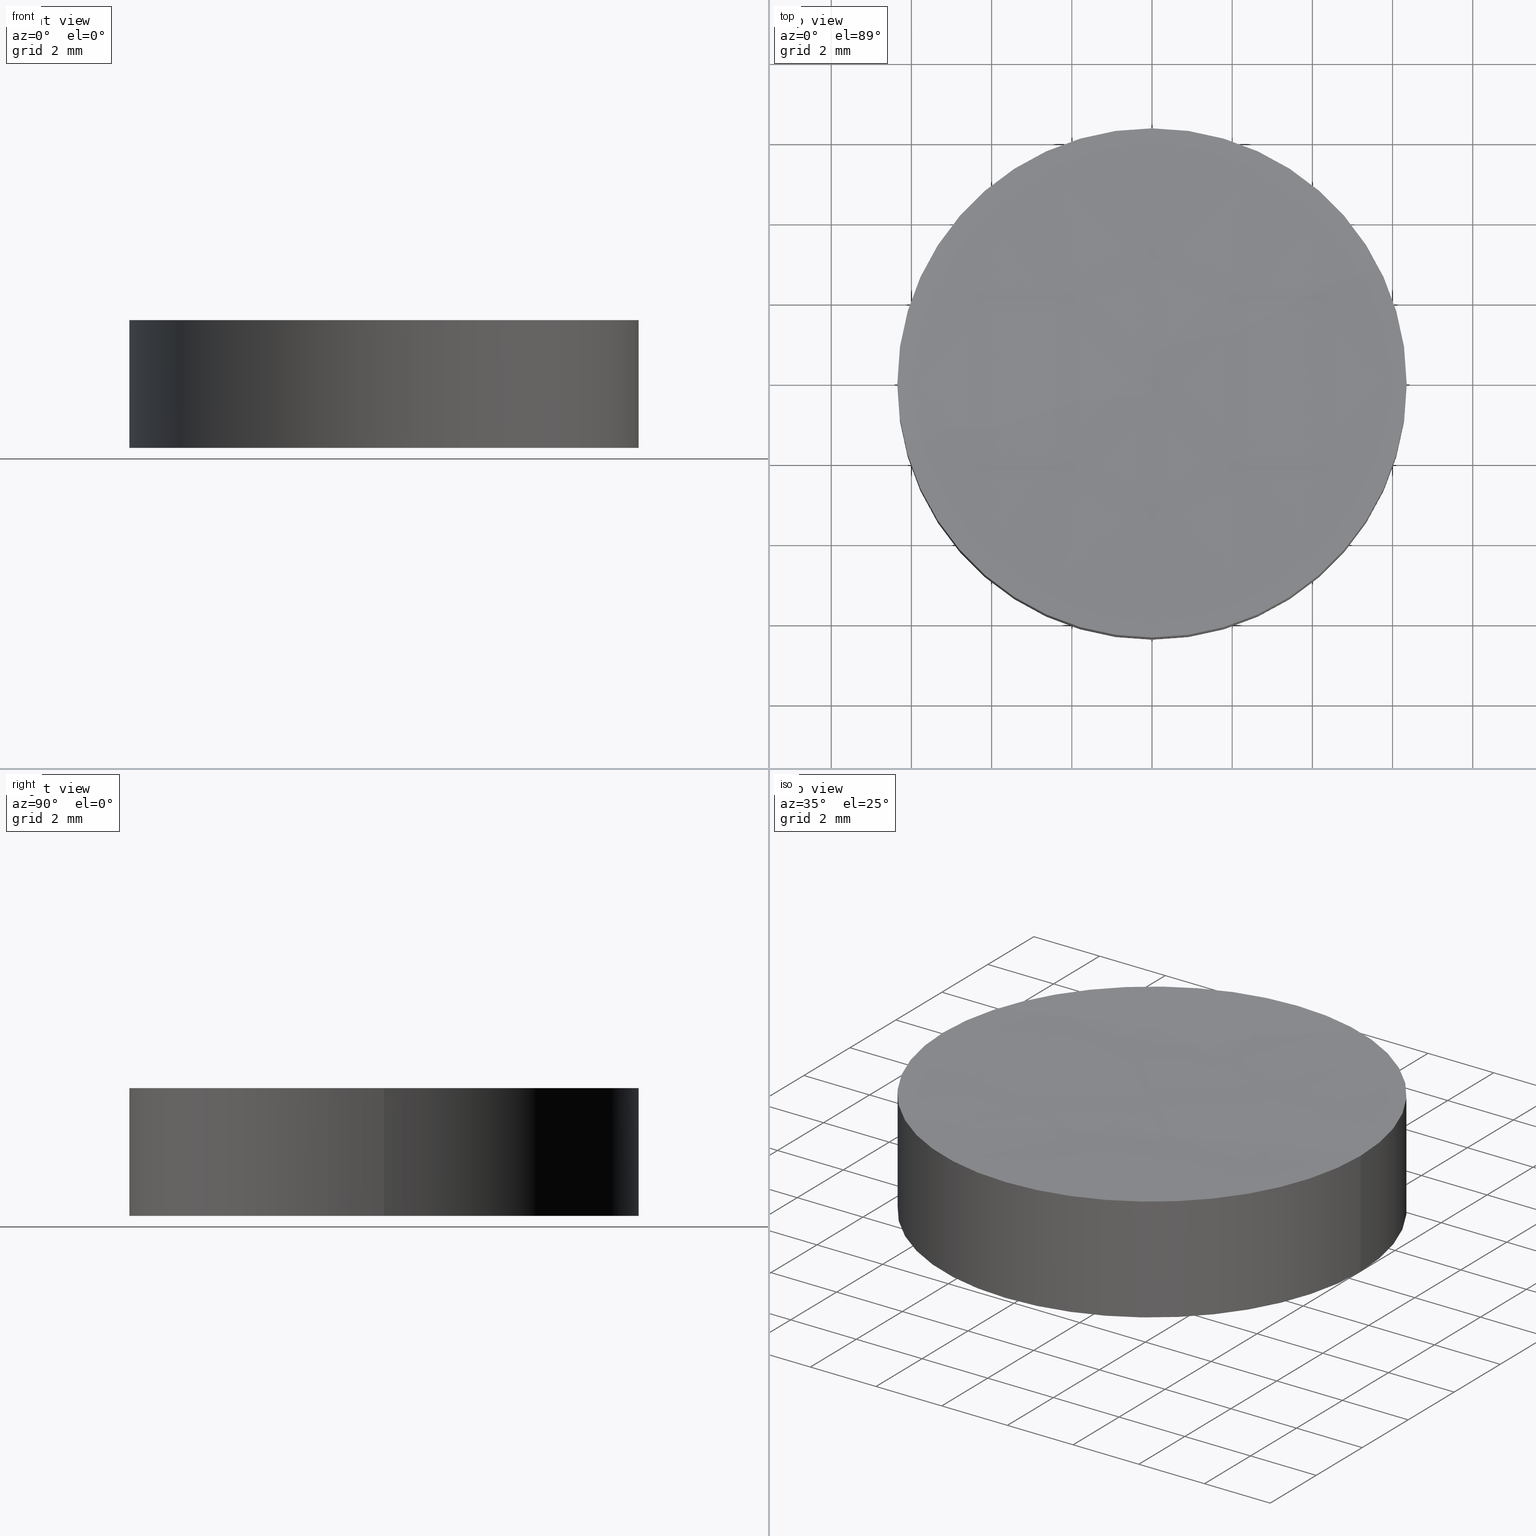
[diagram: canonical four-view strip — front | top / right | iso, engineering-drawing reading convention]
A machine part, canonical four-view strip (front | top / right | iso — engineering-drawing reading convention). The complete STEP part file that produces these views, byte-faithful:
ISO-10303-21;
HEADER;
FILE_DESCRIPTION (( 'STEP AP203' ),
    '1' );
FILE_NAME ('114-0118E BK7 bi-cv 12.7 F-100.STEP',
    '2019-01-20T23:32:06',
    ( '' ),
    ( '' ),
    'SwSTEP 2.0',
    'SolidWorks 2017',
    '' );
FILE_SCHEMA (( 'CONFIG_CONTROL_DESIGN' ));
ENDSEC;

DATA;
#1 = DIRECTION ( 'NONE',  ( 0.0000000000000000000, 1.000000000000000000, -2.663682880578590500E-016 ) ) ;
#2 = DIRECTION ( 'NONE',  ( -0.0000000000000000000, -0.0000000000000000000, -1.000000000000000000 ) ) ;
#3 = CARTESIAN_POINT ( 'NONE',  ( 4.352355991345239500E-014, -6.426103823646342600, 2.998340447626896200 ) ) ;
#4 = EDGE_LOOP ( 'NONE', ( #194, #213, #226, #89, #150, #15 ) ) ;
#5 = CARTESIAN_POINT ( 'NONE',  ( -4.263746704035849400, 2.144756245206003600, 2.799196622420091700 ) ) ;
#6 = APPROVAL_DATE_TIME ( #164, #293 ) ;
#7 = VECTOR ( 'NONE', #160, 1000.000000000000000 ) ;
#8 =( NAMED_UNIT ( * ) PLANE_ANGLE_UNIT ( ) SI_UNIT ( $, .RADIAN. ) );
#9 = CC_DESIGN_PERSON_AND_ORGANIZATION_ASSIGNMENT ( #145, #295, ( #162 ) ) ;
#10 = COORDINATED_UNIVERSAL_TIME_OFFSET ( 2, 0, .AHEAD. ) ;
#11 = ORGANIZATION ( 'UNSPECIFIED', 'UNSPECIFIED', '' ) ;
#12 = DESIGN_CONTEXT ( 'detailed design', #192, 'design' ) ;
#13 = LOCAL_TIME ( 1, 32, 6.000000000000000000, #169 ) ;
#14 = DIRECTION ( 'NONE',  ( 1.000000000000000000, 0.0000000000000000000, 0.0000000000000000000 ) ) ;
#15 = ORIENTED_EDGE ( 'NONE', *, *, #66, .T. ) ;
#16 = CC_DESIGN_PERSON_AND_ORGANIZATION_ASSIGNMENT ( #253, #54, ( #273 ) ) ;
#17 = CARTESIAN_POINT ( 'NONE',  ( -6.349999999999999600, 1.998896044546239400E-015, 2.993666058263550100 ) ) ;
#18 = CARTESIAN_POINT ( 'NONE',  ( 4.359811951640958100E-014, -2.144756245206013800, 2.733802514649782200 ) ) ;
#19 = PERSON_AND_ORGANIZATION ( #168, #11 ) ;
#20 = EDGE_LOOP ( 'NONE', ( #138, #221, #139 ) ) ;
#21 = CARTESIAN_POINT ( 'NONE',  ( 2.132374834590381700, -2.144756245205961000, 0.06619748535020354700 ) ) ;
#22 = DIRECTION ( 'NONE',  ( -0.0000000000000000000, -0.0000000000000000000, -1.000000000000000000 ) ) ;
#23 = AXIS2_PLACEMENT_3D ( 'NONE', #112, #22, #236 ) ;
#24 = VERTEX_POINT ( 'NONE', #59 ) ;
#25 = CARTESIAN_POINT ( 'NONE',  ( 2.132374834590448700, -2.144756245206014300, 2.733802514649792000 ) ) ;
#26 = DIRECTION ( 'NONE',  ( 0.0000000000000000000, 1.000000000000000000, -5.327365761157181000E-016 ) ) ;
#27 = CARTESIAN_POINT ( 'NONE',  ( -6.349999999999999600, 1.998896044546239400E-015, -0.1936660582635470200 ) ) ;
#28 = APPROVAL_PERSON_ORGANIZATION ( #135, #293, #217 ) ;
#29 = LINE ( 'NONE', #175, #7 ) ;
#30 = CARTESIAN_POINT ( 'NONE',  ( 6.349999999999999600, 1.221245327087670000E-015, -0.1936660582635470200 ) ) ;
#31 = APPROVAL ( #80, 'UNSPECIFIED' ) ;
#32 = PRODUCT_DEFINITION_SHAPE ( 'NONE', 'NONE',  #269 ) ;
#33 = ADVANCED_BREP_SHAPE_REPRESENTATION ( '114-0118E BK7 bi-cv 12.7 F-100', ( #209, #200 ), #84 ) ;
#34 = DIRECTION ( 'NONE',  ( 1.000000000000000000, 0.0000000000000000000, 0.0000000000000000000 ) ) ;
#35 = ORIENTED_EDGE ( 'NONE', *, *, #286, .F. ) ;
#36 = LOCAL_TIME ( 1, 32, 6.000000000000000000, #94 ) ;
#37 = ORIENTED_EDGE ( 'NONE', *, *, #104, .T. ) ;
#38 = CARTESIAN_POINT ( 'NONE',  ( -2.132374834590450100, -2.144756245205961000, 0.06619748535019258400 ) ) ;
#39 = CARTESIAN_POINT ( 'NONE',  ( -6.375892942444090200, -6.426103823646189800, -0.3939636686083186600 ) ) ;
#40 = FACE_OUTER_BOUND ( 'NONE', #167, .T. ) ;
#41 = CARTESIAN_POINT ( 'NONE',  ( -6.375892942444113300, 6.426103823646331900, 3.193963668608322100 ) ) ;
#42 = CARTESIAN_POINT ( 'NONE',  ( 6.349999999999999600, 1.221245327087670000E-015, 2.993666058263550100 ) ) ;
#43 = CARTESIAN_POINT ( 'NONE',  ( 4.359811951640958100E-014, 2.144756245206003200, 2.733802514649795100 ) ) ;
#44 = DIRECTION ( 'NONE',  ( 0.0000000000000000000, 0.0000000000000000000, 1.000000000000000000 ) ) ;
#45 = CARTESIAN_POINT ( 'NONE',  ( 6.765421556309547700E-014, 6.426103823646331900, 2.998340447626918900 ) ) ;
#46 = DIRECTION ( 'NONE',  ( 1.000000000000000000, 0.0000000000000000000, 0.0000000000000000000 ) ) ;
#47 = PERSON_AND_ORGANIZATION ( #168, #11 ) ;
#48 = CALENDAR_DATE ( 2019, 21, 1 ) ;
#49 = DIRECTION ( 'NONE',  ( 1.000000000000000000, 0.0000000000000000000, 0.0000000000000000000 ) ) ;
#50 = CARTESIAN_POINT ( 'NONE',  ( 2.132374834590449200, 2.144756245206003200, 2.733802514649805700 ) ) ;
#51 = EDGE_CURVE ( 'NONE', #203, #24, #212, .T. ) ;
#52 =( BOUNDED_SURFACE ( )  B_SPLINE_SURFACE ( 3, 3, ( 
 ( #161, #74, #136, #45 ),
 ( #210, #79, #50, #267 ),
 ( #214, #75, #25, #263 ),
 ( #242, #241, #98, #140 ) ),
 .UNSPECIFIED., .F., .F., .F. ) 
 B_SPLINE_SURFACE_WITH_KNOTS ( ( 4, 4 ),
 ( 4, 4 ),
 ( 0.0000000000000000000, 1.000000000000000000 ),
 ( 0.0000000000000000000, 1.000000000000000000 ),
 .UNSPECIFIED. ) 
 GEOMETRIC_REPRESENTATION_ITEM ( )  RATIONAL_B_SPLINE_SURFACE ( (
 ( 1.000000000000000000, 0.9996864325074911200, 0.9996864325074911200, 1.000000000000000000),
 ( 0.9987310272064817700, 0.9984178576225898300, 0.9984178576225898300, 0.9987310272064817700),
 ( 0.9987310272064817700, 0.9984178576225898300, 0.9984178576225898300, 0.9987310272064817700),
 ( 1.000000000000000000, 0.9996864325074911200, 0.9996864325074911200, 1.000000000000000000) ) ) 
 REPRESENTATION_ITEM ( '' )  SURFACE ( )  );
#53 = CIRCLE ( 'NONE', #119, 6.349999999999999600 ) ;
#54 = PERSON_AND_ORGANIZATION_ROLE ( 'classification_officer' ) ;
#55 = ORIENTED_EDGE ( 'NONE', *, *, #62, .T. ) ;
#56 = APPROVAL_ROLE ( '' ) ;
#57 = CIRCLE ( 'NONE', #222, 6.349999999999999600 ) ;
#58 = EDGE_CURVE ( 'NONE', #24, #176, #230, .T. ) ;
#59 = CARTESIAN_POINT ( 'NONE',  ( -4.352487738278875200E-014, 6.349999999999939200, -0.1936660582635444400 ) ) ;
#60 = UNCERTAINTY_MEASURE_WITH_UNIT (LENGTH_MEASURE( 1.000000000000000100E-005 ), #186, 'distance_accuracy_value', 'NONE');
#61 = CC_DESIGN_DATE_AND_TIME_ASSIGNMENT ( #284, #142, ( #269 ) ) ;
#62 = EDGE_CURVE ( 'NONE', #24, #243, #53, .T. ) ;
#63 = CARTESIAN_POINT ( 'NONE',  ( -2.132374834590449200, 2.144756245205954800, 0.06619748535019345800 ) ) ;
#64 = DATE_AND_TIME ( #127, #121 ) ;
#65 = DIRECTION ( 'NONE',  ( 1.000000000000000000, 7.859994458592750000E-032, 2.818484370769980100E-016 ) ) ;
#66 = EDGE_CURVE ( 'NONE', #260, #95, #171, .T. ) ;
#67 = CARTESIAN_POINT ( 'NONE',  ( -2.132374834590383000, 2.144756245206003600, 2.733802514649794200 ) ) ;
#68 = ORIENTED_EDGE ( 'NONE', *, *, #205, .F. ) ;
#69 = CARTESIAN_POINT ( 'NONE',  ( 6.349999999999999600, 1.221245327087670000E-015, -0.1936660582635470200 ) ) ;
#70 = CARTESIAN_POINT ( 'NONE',  ( 6.375892942444111500, -6.426103823646189800, -0.3939636686083113900 ) ) ;
#71 = DATE_AND_TIME ( #48, #108 ) ;
#72 = FACE_OUTER_BOUND ( 'NONE', #4, .T. ) ;
#73 = DIRECTION ( 'NONE',  ( -0.0000000000000000000, -0.0000000000000000000, -1.000000000000000000 ) ) ;
#74 = CARTESIAN_POINT ( 'NONE',  ( 4.252928982022157600, 6.426103823646332800, 3.063568641395216100 ) ) ;
#75 = CARTESIAN_POINT ( 'NONE',  ( 4.263746704035870700, -2.144756245206013800, 2.799196622420089500 ) ) ;
#76 = CC_DESIGN_PERSON_AND_ORGANIZATION_ASSIGNMENT ( #19, #100, ( #162 ) ) ;
#77 = SHAPE_DEFINITION_REPRESENTATION ( #32, #33 ) ;
#78 = ORIENTED_EDGE ( 'NONE', *, *, #51, .T. ) ;
#79 = CARTESIAN_POINT ( 'NONE',  ( 4.263746704035871600, 2.144756245206003600, 2.799196622420103300 ) ) ;
#80 = APPROVAL_STATUS ( 'not_yet_approved' ) ;
#81 = CALENDAR_DATE ( 2019, 21, 1 ) ;
#82 = ORIENTED_EDGE ( 'NONE', *, *, #211, .F. ) ;
#83 = CARTESIAN_POINT ( 'NONE',  ( 4.352355991345239500E-014, 6.426103823646331900, 2.998340447626910000 ) ) ;
#84 =( GEOMETRIC_REPRESENTATION_CONTEXT ( 3 ) GLOBAL_UNCERTAINTY_ASSIGNED_CONTEXT ( ( #60 ) ) GLOBAL_UNIT_ASSIGNED_CONTEXT ( ( #186, #8, #215 ) ) REPRESENTATION_CONTEXT ( 'NONE', 'WORKASPACE' ) );
#85 = CARTESIAN_POINT ( 'NONE',  ( -1.421085471520200100E-014, -1.421085471520200100E-014, -104.2000000000000000 ) ) ;
#86 = CARTESIAN_POINT ( 'NONE',  ( 2.498001805406600200E-016, 1.221245327087670000E-015, 2.993666058263550100 ) ) ;
#87 = CIRCLE ( 'NONE', #23, 6.349999999999999600 ) ;
#88 = ADVANCED_FACE ( 'NONE', ( #224 ), #182, .F. ) ;
#89 = ORIENTED_EDGE ( 'NONE', *, *, #286, .T. ) ;
#90 = CARTESIAN_POINT ( 'NONE',  ( -4.359811951640958100E-014, 2.144756245205954800, 0.06619748535020388000 ) ) ;
#91 = APPROVAL ( #144, 'UNSPECIFIED' ) ;
#92 = CARTESIAN_POINT ( 'NONE',  ( 4.252928982022134500, -6.426103823646191600, -0.2635686413951936500 ) ) ;
#93 = CARTESIAN_POINT ( 'NONE',  ( -4.263746704035850300, -2.144756245206013800, 2.799196622420078800 ) ) ;
#94 = COORDINATED_UNIVERSAL_TIME_OFFSET ( 2, 0, .AHEAD. ) ;
#95 = VERTEX_POINT ( 'NONE', #17 ) ;
#96 = CARTESIAN_POINT ( 'NONE',  ( 2.126964701252065800, 6.426103823646185400, -0.1983404476268984500 ) ) ;
#97 = DIRECTION ( 'NONE',  ( -1.000000000000000000, -1.571998891718550000E-031, -2.818484370769980100E-016 ) ) ;
#98 = CARTESIAN_POINT ( 'NONE',  ( 2.126964701252132000, -6.426103823646344400, 2.998340447626906900 ) ) ;
#99 = CARTESIAN_POINT ( 'NONE',  ( 4.352487738278875200E-014, 6.350000000000076000, 2.993666058263544400 ) ) ;
#100 = PERSON_AND_ORGANIZATION_ROLE ( 'creator' ) ;
#101 = CIRCLE ( 'NONE', #252, 104.2000000000000000 ) ;
#102 = ORIENTED_EDGE ( 'NONE', *, *, #51, .F. ) ;
#103 = PRODUCT ( '114-0118E BK7 bi-cv 12.7 F-100', '114-0118E BK7 bi-cv 12.7 F-100', '', ( #244 ) ) ;
#104 = EDGE_CURVE ( 'NONE', #248, #191, #57, .T. ) ;
#105 = ORIENTED_EDGE ( 'NONE', *, *, #66, .F. ) ;
#106 = CIRCLE ( 'NONE', #276, 6.349999999999999600 ) ;
#107 = CARTESIAN_POINT ( 'NONE',  ( -6.852157730108388000E-014, 6.426103823646184500, -0.1983404476269083100 ) ) ;
#108 = LOCAL_TIME ( 1, 32, 6.000000000000000000, #170 ) ;
#109 = PRODUCT_RELATED_PRODUCT_CATEGORY ( 'detail', '', ( #103 ) ) ;
#110 = CARTESIAN_POINT ( 'NONE',  ( -6.375892942444090200, 6.426103823646184500, -0.3939636686083186600 ) ) ;
#111 = CLOSED_SHELL ( 'NONE', ( #88, #281, #233, #250, #174, #149 ) ) ;
#112 = CARTESIAN_POINT ( 'NONE',  ( 2.498001805406600200E-016, 1.221245327087670000E-015, 2.993666058263550100 ) ) ;
#113 = CARTESIAN_POINT ( 'NONE',  ( 2.498001805406600200E-016, 1.221245327087670000E-015, 2.993666058263550100 ) ) ;
#114 = PERSON_AND_ORGANIZATION ( #168, #11 ) ;
#115 = DIRECTION ( 'NONE',  ( 1.000000000000000000, 0.0000000000000000000, 0.0000000000000000000 ) ) ;
#116 = DIRECTION ( 'NONE',  ( 0.0000000000000000000, 0.0000000000000000000, 1.000000000000000000 ) ) ;
#117 = APPLICATION_CONTEXT ( 'configuration controlled 3d designs of mechanical parts and assemblies' ) ;
#118 = APPROVAL_STATUS ( 'not_yet_approved' ) ;
#119 = AXIS2_PLACEMENT_3D ( 'NONE', #151, #251, #14 ) ;
#120 = DATE_TIME_ROLE ( 'classification_date' ) ;
#121 = LOCAL_TIME ( 1, 32, 6.000000000000000000, #245 ) ;
#122 = PERSON_AND_ORGANIZATION ( #168, #11 ) ;
#123 =( BOUNDED_SURFACE ( )  B_SPLINE_SURFACE ( 3, 3, ( 
 ( #158, #96, #232, #283 ),
 ( #90, #255, #208, #257 ),
 ( #131, #21, #204, #234 ),
 ( #134, #258, #92, #70 ) ),
 .UNSPECIFIED., .F., .F., .F. ) 
 B_SPLINE_SURFACE_WITH_KNOTS ( ( 4, 4 ),
 ( 4, 4 ),
 ( 0.0000000000000000000, 1.000000000000000000 ),
 ( 0.0000000000000000000, 1.000000000000000000 ),
 .UNSPECIFIED. ) 
 GEOMETRIC_REPRESENTATION_ITEM ( )  RATIONAL_B_SPLINE_SURFACE ( (
 ( 1.000000000000000000, 0.9996864325074911200, 0.9996864325074911200, 1.000000000000000000),
 ( 0.9987310272064817700, 0.9984178576225898300, 0.9984178576225898300, 0.9987310272064817700),
 ( 0.9987310272064817700, 0.9984178576225898300, 0.9984178576225898300, 0.9987310272064817700),
 ( 1.000000000000000000, 0.9996864325074911200, 0.9996864325074911200, 1.000000000000000000) ) ) 
 REPRESENTATION_ITEM ( '' )  SURFACE ( )  );
#124 = ORIENTED_EDGE ( 'NONE', *, *, #211, .T. ) ;
#125 = CARTESIAN_POINT ( 'NONE',  ( -6.392110621538222400, -2.144756245205960500, -0.1299233215615131800 ) ) ;
#126 = DIRECTION ( 'NONE',  ( 1.000000000000000000, 0.0000000000000000000, 0.0000000000000000000 ) ) ;
#127 = CALENDAR_DATE ( 2019, 21, 1 ) ;
#128 = CARTESIAN_POINT ( 'NONE',  ( -6.392110621538221500, 2.144756245205954800, -0.1299233215615122600 ) ) ;
#129 = EDGE_CURVE ( 'NONE', #243, #176, #235, .T. ) ;
#130 = DIRECTION ( 'NONE',  ( -0.0000000000000000000, -0.0000000000000000000, -1.000000000000000000 ) ) ;
#131 = CARTESIAN_POINT ( 'NONE',  ( -4.359811951640958100E-014, -2.144756245205960500, 0.06619748535020295000 ) ) ;
#132 = CARTESIAN_POINT ( 'NONE',  ( -4.352487738278875200E-014, -6.349999999999952600, -0.1936660582635444400 ) ) ;
#133 = DIRECTION ( 'NONE',  ( 1.000000000000000000, 0.0000000000000000000, 0.0000000000000000000 ) ) ;
#134 = CARTESIAN_POINT ( 'NONE',  ( -4.352355991345239500E-014, -6.426103823646189800, -0.1983404476268990600 ) ) ;
#135 = PERSON_AND_ORGANIZATION ( #168, #11 ) ;
#136 = CARTESIAN_POINT ( 'NONE',  ( 2.126964701252131600, 6.426103823646332800, 2.998340447626921100 ) ) ;
#137 = APPROVAL_PERSON_ORGANIZATION ( #265, #91, #56 ) ;
#138 = ORIENTED_EDGE ( 'NONE', *, *, #62, .F. ) ;
#139 = ORIENTED_EDGE ( 'NONE', *, *, #129, .F. ) ;
#140 = CARTESIAN_POINT ( 'NONE',  ( 6.765421556309547700E-014, -6.426103823646342600, 2.998340447626905100 ) ) ;
#141 = EDGE_CURVE ( 'NONE', #191, #260, #87, .T. ) ;
#142 = DATE_TIME_ROLE ( 'creation_date' ) ;
#143 = EDGE_LOOP ( 'NONE', ( #155, #102, #270 ) ) ;
#144 = APPROVAL_STATUS ( 'not_yet_approved' ) ;
#145 = PERSON_AND_ORGANIZATION ( #168, #11 ) ;
#146 = ORIENTED_EDGE ( 'NONE', *, *, #104, .F. ) ;
#147 = DIRECTION ( 'NONE',  ( 0.0000000000000000000, 0.0000000000000000000, 1.000000000000000000 ) ) ;
#148 = CC_DESIGN_APPROVAL ( #31, ( #269 ) ) ;
#149 = ADVANCED_FACE ( 'NONE', ( #40 ), #249, .F. ) ;
#150 = ORIENTED_EDGE ( 'NONE', *, *, #141, .T. ) ;
#151 = CARTESIAN_POINT ( 'NONE',  ( 2.498001805406600200E-016, 1.221245327087670000E-015, -0.1936660582635470200 ) ) ;
#152 = CARTESIAN_POINT ( 'NONE',  ( -4.263746704035870700, 2.144756245205954800, 0.0008033775798952051800 ) ) ;
#153 = CARTESIAN_POINT ( 'NONE',  ( -2.126964701252132900, -6.426103823646191600, -0.1983404476269094400 ) ) ;
#154 = FACE_OUTER_BOUND ( 'NONE', #143, .T. ) ;
#155 = ORIENTED_EDGE ( 'NONE', *, *, #58, .F. ) ;
#156 = DIRECTION ( 'NONE',  ( 1.000000000000000000, 1.776356839400250500E-015, 0.0000000000000000000 ) ) ;
#157 = AXIS2_PLACEMENT_3D ( 'NONE', #197, #227, #133 ) ;
#158 = CARTESIAN_POINT ( 'NONE',  ( -4.352355991345239500E-014, 6.426103823646184500, -0.1983404476268990600 ) ) ;
#159 = ORIENTED_EDGE ( 'NONE', *, *, #187, .T. ) ;
#160 = DIRECTION ( 'NONE',  ( 0.0000000000000000000, 0.0000000000000000000, 1.000000000000000000 ) ) ;
#161 = CARTESIAN_POINT ( 'NONE',  ( 6.375892942444089300, 6.426103823646331900, 3.193963668608329700 ) ) ;
#162 = PRODUCT_DEFINITION_FORMATION_WITH_SPECIFIED_SOURCE ( 'ANY', '', #103, .NOT_KNOWN. ) ;
#163 = CARTESIAN_POINT ( 'NONE',  ( 0.0000000000000000000, 0.0000000000000000000, 0.0000000000000000000 ) ) ;
#164 = DATE_AND_TIME ( #259, #36 ) ;
#165 = DIRECTION ( 'NONE',  ( 1.000000000000000000, -8.881784197001252300E-016, 0.0000000000000000000 ) ) ;
#166 = CC_DESIGN_DATE_AND_TIME_ASSIGNMENT ( #180, #120, ( #273 ) ) ;
#167 = EDGE_LOOP ( 'NONE', ( #68, #82, #105 ) ) ;
#168 = PERSON ( 'UNSPECIFIED', 'UNSPECIFIED', 'UNSPECIFIED', ('UNSPECIFIED'), ('UNSPECIFIED'), ('UNSPECIFIED') ) ;
#169 = COORDINATED_UNIVERSAL_TIME_OFFSET ( 2, 0, .AHEAD. ) ;
#170 = COORDINATED_UNIVERSAL_TIME_OFFSET ( 2, 0, .AHEAD. ) ;
#171 = CIRCLE ( 'NONE', #264, 6.349999999999999600 ) ;
#172 = CARTESIAN_POINT ( 'NONE',  ( -6.852157730108389300E-014, 2.144756245205954800, 0.06619748535019458200 ) ) ;
#173 = AXIS2_PLACEMENT_3D ( 'NONE', #223, #147, #34 ) ;
#174 = ADVANCED_FACE ( 'NONE', ( #154 ), #123, .F. ) ;
#175 = CARTESIAN_POINT ( 'NONE',  ( -6.349999999999999600, 1.998896044546239400E-015, -0.1936660582635470200 ) ) ;
#176 = VERTEX_POINT ( 'NONE', #132 ) ;
#177 = CARTESIAN_POINT ( 'NONE',  ( 1.421085471520200100E-014, -1.421085471520200100E-014, 107.0000000000000000 ) ) ;
#178 = CARTESIAN_POINT ( 'NONE',  ( -2.132374834590383000, -2.144756245206013800, 2.733802514649780400 ) ) ;
#179 = AXIS2_PLACEMENT_3D ( 'NONE', #113, #73, #165 ) ;
#180 = DATE_AND_TIME ( #190, #13 ) ;
#181 = DIRECTION ( 'NONE',  ( 0.0000000000000000000, 0.0000000000000000000, 1.000000000000000000 ) ) ;
#182 =( BOUNDED_SURFACE ( )  B_SPLINE_SURFACE ( 3, 3, ( 
 ( #110, #278, #225, #107 ),
 ( #128, #152, #63, #172 ),
 ( #125, #254, #38, #229 ),
 ( #39, #195, #153, #199 ) ),
 .UNSPECIFIED., .F., .F., .F. ) 
 B_SPLINE_SURFACE_WITH_KNOTS ( ( 4, 4 ),
 ( 4, 4 ),
 ( 0.0000000000000000000, 1.000000000000000000 ),
 ( 0.0000000000000000000, 1.000000000000000000 ),
 .UNSPECIFIED. ) 
 GEOMETRIC_REPRESENTATION_ITEM ( )  RATIONAL_B_SPLINE_SURFACE ( (
 ( 1.000000000000000000, 0.9996864325074911200, 0.9996864325074911200, 1.000000000000000000),
 ( 0.9987310272064817700, 0.9984178576225898300, 0.9984178576225898300, 0.9987310272064817700),
 ( 0.9987310272064817700, 0.9984178576225898300, 0.9984178576225898300, 0.9987310272064817700),
 ( 1.000000000000000000, 0.9996864325074911200, 0.9996864325074911200, 1.000000000000000000) ) ) 
 REPRESENTATION_ITEM ( '' )  SURFACE ( )  );
#183 = CARTESIAN_POINT ( 'NONE',  ( 2.498001805406600200E-016, 1.221245327087670000E-015, -0.1936660582635470200 ) ) ;
#184 = CC_DESIGN_APPROVAL ( #91, ( #273 ) ) ;
#185 = APPROVAL_DATE_TIME ( #71, #31 ) ;
#186 =( LENGTH_UNIT ( ) NAMED_UNIT ( * ) SI_UNIT ( .MILLI., .METRE. ) );
#187 = EDGE_CURVE ( 'NONE', #243, #95, #29, .T. ) ;
#188 = CC_DESIGN_PERSON_AND_ORGANIZATION_ASSIGNMENT ( #47, #219, ( #269 ) ) ;
#189 = PERSON_AND_ORGANIZATION_ROLE ( 'design_owner' ) ;
#190 = CALENDAR_DATE ( 2019, 21, 1 ) ;
#191 = VERTEX_POINT ( 'NONE', #42 ) ;
#192 = APPLICATION_CONTEXT ( 'configuration controlled 3d designs of mechanical parts and assemblies' ) ;
#193 = FACE_OUTER_BOUND ( 'NONE', #198, .T. ) ;
#194 = ORIENTED_EDGE ( 'NONE', *, *, #187, .F. ) ;
#195 = CARTESIAN_POINT ( 'NONE',  ( -4.252928982022157600, -6.426103823646191600, -0.2635686413952046400 ) ) ;
#196 = AXIS2_PLACEMENT_3D ( 'NONE', #183, #116, #49 ) ;
#197 = CARTESIAN_POINT ( 'NONE',  ( 2.498001805406600200E-016, 1.221245327087670000E-015, -0.1936660582635470200 ) ) ;
#198 = EDGE_LOOP ( 'NONE', ( #78, #55, #159, #124, #37, #35 ) ) ;
#199 = CARTESIAN_POINT ( 'NONE',  ( -6.852157730108388000E-014, -6.426103823646189800, -0.1983404476269083100 ) ) ;
#200 = AXIS2_PLACEMENT_3D ( 'NONE', #163, #181, #115 ) ;
#201 = CARTESIAN_POINT ( 'NONE',  ( -6.375892942444114200, -6.426103823646342600, 3.193963668608308400 ) ) ;
#202 = CIRCLE ( 'NONE', #179, 6.349999999999999600 ) ;
#203 = VERTEX_POINT ( 'NONE', #69 ) ;
#204 = CARTESIAN_POINT ( 'NONE',  ( 4.263746704035847700, -2.144756245205961000, 0.0008033775799052611600 ) ) ;
#205 = EDGE_CURVE ( 'NONE', #248, #260, #101, .T. ) ;
#206 = CARTESIAN_POINT ( 'NONE',  ( -6.392110621538247300, 2.144756245206003200, 2.929923321561504100 ) ) ;
#207 = CARTESIAN_POINT ( 'NONE',  ( 2.498001805406600200E-016, 1.221245327087670000E-015, -0.1936660582635470200 ) ) ;
#208 = CARTESIAN_POINT ( 'NONE',  ( 4.263746704035847700, 2.144756245205954800, 0.0008033775799061827300 ) ) ;
#209 = MANIFOLD_SOLID_BREP ( 'Imported1', #111 ) ;
#210 = CARTESIAN_POINT ( 'NONE',  ( 6.392110621538222400, 2.144756245206003200, 2.929923321561511300 ) ) ;
#211 = EDGE_CURVE ( 'NONE', #95, #248, #202, .T. ) ;
#212 = CIRCLE ( 'NONE', #173, 6.349999999999999600 ) ;
#213 = ORIENTED_EDGE ( 'NONE', *, *, #129, .T. ) ;
#214 = CARTESIAN_POINT ( 'NONE',  ( 6.392110621538222400, -2.144756245206013800, 2.929923321561497900 ) ) ;
#215 =( NAMED_UNIT ( * ) SI_UNIT ( $, .STERADIAN. ) SOLID_ANGLE_UNIT ( ) );
#216 = SECURITY_CLASSIFICATION_LEVEL ( 'unclassified' ) ;
#217 = APPROVAL_ROLE ( '' ) ;
#218 = AXIS2_PLACEMENT_3D ( 'NONE', #85, #65, #1 ) ;
#219 = PERSON_AND_ORGANIZATION_ROLE ( 'creator' ) ;
#220 = APPLICATION_PROTOCOL_DEFINITION ( 'international standard', 'config_control_design', 1994, #192 ) ;
#221 = ORIENTED_EDGE ( 'NONE', *, *, #58, .T. ) ;
#222 = AXIS2_PLACEMENT_3D ( 'NONE', #280, #130, #156 ) ;
#223 = CARTESIAN_POINT ( 'NONE',  ( 2.498001805406600200E-016, 1.221245327087670000E-015, -0.1936660582635470200 ) ) ;
#224 = FACE_OUTER_BOUND ( 'NONE', #20, .T. ) ;
#225 = CARTESIAN_POINT ( 'NONE',  ( -2.126964701252132900, 6.426103823646185400, -0.1983404476269094400 ) ) ;
#226 = ORIENTED_EDGE ( 'NONE', *, *, #247, .T. ) ;
#227 = DIRECTION ( 'NONE',  ( 0.0000000000000000000, 0.0000000000000000000, 1.000000000000000000 ) ) ;
#228 = CC_DESIGN_PERSON_AND_ORGANIZATION_ASSIGNMENT ( #114, #189, ( #103 ) ) ;
#229 = CARTESIAN_POINT ( 'NONE',  ( -6.938893903907229600E-014, -2.144756245205960500, 0.06619748535019370800 ) ) ;
#230 = CIRCLE ( 'NONE', #218, 104.2000000000000000 ) ;
#231 = AXIS2_PLACEMENT_3D ( 'NONE', #207, #44, #238 ) ;
#232 = CARTESIAN_POINT ( 'NONE',  ( 4.252928982022134500, 6.426103823646185400, -0.2635686413951937000 ) ) ;
#233 = ADVANCED_FACE ( 'NONE', ( #193 ), #291, .T. ) ;
#234 = CARTESIAN_POINT ( 'NONE',  ( 6.392110621538243700, -2.144756245205960500, -0.1299233215615059300 ) ) ;
#235 = CIRCLE ( 'NONE', #157, 6.349999999999999600 ) ;
#236 = DIRECTION ( 'NONE',  ( 1.000000000000000000, 0.0000000000000000000, 0.0000000000000000000 ) ) ;
#237 = CARTESIAN_POINT ( 'NONE',  ( -2.126964701252066700, -6.426103823646344400, 2.998340447626896200 ) ) ;
#238 = DIRECTION ( 'NONE',  ( 1.000000000000000000, 0.0000000000000000000, 0.0000000000000000000 ) ) ;
#239 = LOCAL_TIME ( 1, 32, 6.000000000000000000, #10 ) ;
#240 = APPROVAL_PERSON_ORGANIZATION ( #122, #31, #292 ) ;
#241 = CARTESIAN_POINT ( 'NONE',  ( 4.252928982022157600, -6.426103823646344400, 3.063568641395202400 ) ) ;
#242 = CARTESIAN_POINT ( 'NONE',  ( 6.375892942444090200, -6.426103823646342600, 3.193963668608315500 ) ) ;
#243 = VERTEX_POINT ( 'NONE', #27 ) ;
#244 = MECHANICAL_CONTEXT ( 'NONE', #117, 'mechanical' ) ;
#245 = COORDINATED_UNIVERSAL_TIME_OFFSET ( 2, 0, .AHEAD. ) ;
#246 = CC_DESIGN_APPROVAL ( #293, ( #162 ) ) ;
#247 = EDGE_CURVE ( 'NONE', #176, #203, #106, .T. ) ;
#248 = VERTEX_POINT ( 'NONE', #99 ) ;
#249 =( BOUNDED_SURFACE ( )  B_SPLINE_SURFACE ( 3, 3, ( 
 ( #83, #277, #287, #41 ),
 ( #43, #67, #5, #206 ),
 ( #18, #178, #93, #285 ),
 ( #3, #237, #282, #201 ) ),
 .UNSPECIFIED., .F., .F., .T. ) 
 B_SPLINE_SURFACE_WITH_KNOTS ( ( 4, 4 ),
 ( 4, 4 ),
 ( 0.0000000000000000000, 1.000000000000000000 ),
 ( 0.0000000000000000000, 1.000000000000000000 ),
 .UNSPECIFIED. ) 
 GEOMETRIC_REPRESENTATION_ITEM ( )  RATIONAL_B_SPLINE_SURFACE ( (
 ( 1.000000000000000000, 0.9996864325074911200, 0.9996864325074911200, 1.000000000000000000),
 ( 0.9987310272064817700, 0.9984178576225898300, 0.9984178576225898300, 0.9987310272064817700),
 ( 0.9987310272064817700, 0.9984178576225898300, 0.9984178576225898300, 0.9987310272064817700),
 ( 1.000000000000000000, 0.9996864325074911200, 0.9996864325074911200, 1.000000000000000000) ) ) 
 REPRESENTATION_ITEM ( '' )  SURFACE ( )  );
#250 = ADVANCED_FACE ( 'NONE', ( #72 ), #294, .T. ) ;
#251 = DIRECTION ( 'NONE',  ( 0.0000000000000000000, 0.0000000000000000000, 1.000000000000000000 ) ) ;
#252 = AXIS2_PLACEMENT_3D ( 'NONE', #177, #97, #26 ) ;
#253 = PERSON_AND_ORGANIZATION ( #168, #11 ) ;
#254 = CARTESIAN_POINT ( 'NONE',  ( -4.263746704035871600, -2.144756245205961000, 0.0008033775798943109300 ) ) ;
#255 = CARTESIAN_POINT ( 'NONE',  ( 2.132374834590381700, 2.144756245205954800, 0.06619748535020443500 ) ) ;
#256 = EDGE_LOOP ( 'NONE', ( #146, #268, #275 ) ) ;
#257 = CARTESIAN_POINT ( 'NONE',  ( 6.392110621538243700, 2.144756245205954800, -0.1299233215615049900 ) ) ;
#258 = CARTESIAN_POINT ( 'NONE',  ( 2.126964701252065800, -6.426103823646191600, -0.1983404476268984500 ) ) ;
#259 = CALENDAR_DATE ( 2019, 21, 1 ) ;
#260 = VERTEX_POINT ( 'NONE', #262 ) ;
#261 = DIRECTION ( 'NONE',  ( 0.0000000000000000000, 0.0000000000000000000, 1.000000000000000000 ) ) ;
#262 = CARTESIAN_POINT ( 'NONE',  ( 4.352487738278875200E-014, -6.350000000000089400, 2.993666058263544400 ) ) ;
#263 = CARTESIAN_POINT ( 'NONE',  ( 6.765421556309548900E-014, -2.144756245206014300, 2.733802514649791100 ) ) ;
#264 = AXIS2_PLACEMENT_3D ( 'NONE', #86, #2, #126 ) ;
#265 = PERSON_AND_ORGANIZATION ( #168, #11 ) ;
#266 = VECTOR ( 'NONE', #261, 1000.000000000000000 ) ;
#267 = CARTESIAN_POINT ( 'NONE',  ( 6.852157730108389300E-014, 2.144756245206002700, 2.733802514649804800 ) ) ;
#268 = ORIENTED_EDGE ( 'NONE', *, *, #205, .T. ) ;
#269 = PRODUCT_DEFINITION ( 'UNKNOWN', '', #162, #12 ) ;
#270 = ORIENTED_EDGE ( 'NONE', *, *, #247, .F. ) ;
#271 = APPLICATION_PROTOCOL_DEFINITION ( 'international standard', 'config_control_design', 1994, #117 ) ;
#272 = APPROVAL_DATE_TIME ( #64, #91 ) ;
#273 = SECURITY_CLASSIFICATION ( '', '', #216 ) ;
#274 = LINE ( 'NONE', #30, #266 ) ;
#275 = ORIENTED_EDGE ( 'NONE', *, *, #141, .F. ) ;
#276 = AXIS2_PLACEMENT_3D ( 'NONE', #290, #289, #46 ) ;
#277 = CARTESIAN_POINT ( 'NONE',  ( -2.126964701252066700, 6.426103823646332800, 2.998340447626910000 ) ) ;
#278 = CARTESIAN_POINT ( 'NONE',  ( -4.252928982022157600, 6.426103823646185400, -0.2635686413952046400 ) ) ;
#279 = CC_DESIGN_SECURITY_CLASSIFICATION ( #273, ( #162 ) ) ;
#280 = CARTESIAN_POINT ( 'NONE',  ( 2.498001805406600200E-016, 1.221245327087670000E-015, 2.993666058263550100 ) ) ;
#281 = ADVANCED_FACE ( 'NONE', ( #288 ), #52, .F. ) ;
#282 = CARTESIAN_POINT ( 'NONE',  ( -4.252928982022136300, -6.426103823646344400, 3.063568641395190800 ) ) ;
#283 = CARTESIAN_POINT ( 'NONE',  ( 6.375892942444111500, 6.426103823646184500, -0.3939636686083114500 ) ) ;
#284 = DATE_AND_TIME ( #81, #239 ) ;
#285 = CARTESIAN_POINT ( 'NONE',  ( -6.392110621538247300, -2.144756245206013800, 2.929923321561491300 ) ) ;
#286 = EDGE_CURVE ( 'NONE', #203, #191, #274, .T. ) ;
#287 = CARTESIAN_POINT ( 'NONE',  ( -4.252928982022135400, 6.426103823646332800, 3.063568641395205000 ) ) ;
#288 = FACE_OUTER_BOUND ( 'NONE', #256, .T. ) ;
#289 = DIRECTION ( 'NONE',  ( 0.0000000000000000000, 0.0000000000000000000, 1.000000000000000000 ) ) ;
#290 = CARTESIAN_POINT ( 'NONE',  ( 2.498001805406600200E-016, 1.221245327087670000E-015, -0.1936660582635470200 ) ) ;
#291 = CYLINDRICAL_SURFACE ( 'NONE', #231, 6.349999999999999600 ) ;
#292 = APPROVAL_ROLE ( '' ) ;
#293 = APPROVAL ( #118, 'UNSPECIFIED' ) ;
#294 = CYLINDRICAL_SURFACE ( 'NONE', #196, 6.349999999999999600 ) ;
#295 = PERSON_AND_ORGANIZATION_ROLE ( 'design_supplier' ) ;
ENDSEC;
END-ISO-10303-21;
